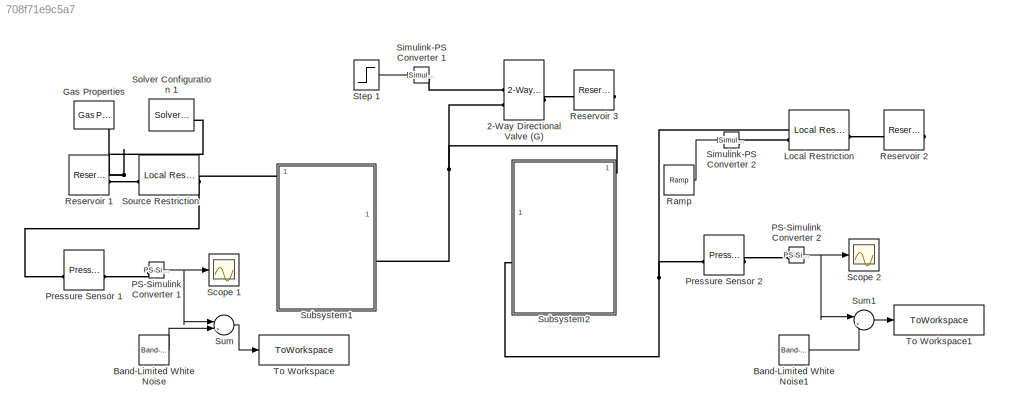
MODEL slx_708f71e9c5a7
KIND model
CONFIG AbsTol = auto
CONFIG EnableMultiTasking = off
CONFIG FixedStep = auto
CONFIG MaxStep = auto
CONFIG MinStep = auto
CONFIG RelTol = 1e-3
CONFIG SampleTimeConstraint = Unconstrained
CONFIG SolverName = VariableStepAuto
CONFIG StartTime = 0.0
CONFIG StopTime = 150.0
BLOCK [Reference] 2-Way Directional Valve (G)  REF=SimscapeFluids_lib/Gas/Valves & Orifices/Directional Control
Valves/2-Way Directional
Valve (G)
  SourceBlock = SimscapeFluids_lib/Gas/Valves & Orifices/Directional Control\nValves/2-Way Directional\nValve (G)
  SourceType = 2-Way Directional\nValve (G)
BLOCK [Reference] Band-Limited White Noise  REF=simulink/Sources/Band-Limited
White Noise
  SourceBlock = simulink/Sources/Band-Limited\nWhite Noise
  SourceType = Band-Limited White Noise.
BLOCK [Reference] Band-Limited White Noise1  REF=simulink/Sources/Band-Limited
White Noise
  SourceBlock = simulink/Sources/Band-Limited\nWhite Noise
  SourceType = Band-Limited White Noise.
BLOCK [Reference] Gas Properties  REF=fl_lib/Gas/Utilities/Gas Properties (G)
  NameLocation = top
  SourceBlock = fl_lib/Gas/Utilities/Gas Properties (G)
  SourceType = Gas Properties (G)
BLOCK [Reference] Local Restriction  REF=fl_lib/Gas/Elements/Local Restriction
(G)
  SourceBlock = fl_lib/Gas/Elements/Local Restriction\n(G)
  SourceType = Local Restriction\n(G)
BLOCK [Reference] PS-Simulink Converter 1  REF=nesl_utility/PS-Simulink
Converter
  SourceBlock = nesl_utility/PS-Simulink\nConverter
  SourceType = PS-Simulink\nConverter
BLOCK [Reference] PS-Simulink Converter 2  REF=nesl_utility/PS-Simulink
Converter
  SourceBlock = nesl_utility/PS-Simulink\nConverter
  SourceType = PS-Simulink\nConverter
BLOCK [Reference] Pressure Sensor 1  REF=fl_lib/Gas/Sensors/Pressure &
Temperature Sensor
(G)
  SourceBlock = fl_lib/Gas/Sensors/Pressure &\nTemperature Sensor\n(G)
  SourceType = Pressure &\nTemperature Sensor\n(G)
BLOCK [Reference] Pressure Sensor 2  REF=fl_lib/Gas/Sensors/Pressure &
Temperature Sensor
(G)
  SourceBlock = fl_lib/Gas/Sensors/Pressure &\nTemperature Sensor\n(G)
  SourceType = Pressure &\nTemperature Sensor\n(G)
BLOCK [Reference] Ramp  REF=simulink/Sources/Ramp
  SourceBlock = simulink/Sources/Ramp
  SourceType = Ramp
BLOCK [Reference] Reservoir 1  REF=fl_lib/Gas/Elements/Reservoir (G)
  SourceBlock = fl_lib/Gas/Elements/Reservoir (G)
  SourceType = Reservoir (G)
BLOCK [Reference] Reservoir 2  REF=fl_lib/Gas/Elements/Reservoir (G)
  SourceBlock = fl_lib/Gas/Elements/Reservoir (G)
  SourceType = Reservoir (G)
BLOCK [Reference] Reservoir 3  REF=fl_lib/Gas/Elements/Reservoir (G)
  SourceBlock = fl_lib/Gas/Elements/Reservoir (G)
  SourceType = Reservoir (G)
BLOCK [Scope] Scope 1
  ActiveDisplayYMaximum = 4.9977114655303492
  ActiveDisplayYMinimum = 4.9977114305855181
  DisplayFullPath = on
  Floating = off
  GraphicalSettings = {"AxesScalingProperties":{"AlignXAxis":"Center","AlignYAxis":"Center","AutoScaleXAxisLimits":false,"AxesScaling":"Manual","AxesScalingNumUpdates":10,"ExpandOnly":true,"ScaleAxesLimitsAtStop":false,"XAxisDataRange":100,"YAxisDataRange":80},"DisplayProperties":{"ColorOrder":["auto","auto","auto","auto","auto","auto","auto","auto","auto","auto","auto","auto","auto","auto","auto","auto","auto","auto",...<+1872ch>
  MultipleDisplayCache = [{"MaxYLimMag":4.9977114956263282,"MaxYLimReal":4.9977114655303492,"MinYLimMag":4.9977110918172514,"MinYLimReal":4.9977114305855181,"PlotAsMagnitudePhase":false,"ShowGrid":true,"ShowLegend":true,"Title":"Upstream Pressure","YLabel":""}]
  NumInputPorts = 1
  OpenAtSimulationStart = on
  ScopeFrameLocation = window
  ShowLegend = on
  ShowTimeAxisLabel = on
  Title = Upstream Pressure
  WasSavedAsWebScope = on
  WindowPosition = [1360.000000,576.000000,560.000000,420.000000,]
BLOCK [Scope] Scope 2
  ActiveDisplayYMaximum = 4.5020973094450438
  ActiveDisplayYMinimum = 4.5020972994524531
  DataLoggingVariableName = ScopeData1
  DisplayFullPath = on
  Floating = off
  GraphicalSettings = {"AxesScalingProperties":{"AlignXAxis":"Center","AlignYAxis":"Center","AutoScaleXAxisLimits":false,"AxesScaling":"Manual","AxesScalingNumUpdates":10,"ExpandOnly":true,"ScaleAxesLimitsAtStop":false,"XAxisDataRange":100,"YAxisDataRange":80},"DisplayProperties":{"ColorOrder":["auto","auto","auto","auto","auto","auto","auto","auto","auto","auto","auto","auto","auto","auto","auto","auto","auto","auto",...<+1987ch>
  MultipleDisplayCache = [{"MaxYLimMag":4.5020973216766755,"MaxYLimReal":4.5020973094450438,"MinYLimMag":4.5020971612976837,"MinYLimReal":4.5020972994524531,"PlotAsMagnitudePhase":false,"ShowGrid":true,"ShowLegend":true,"Title":"Downstream Pressure","YLabel":""}]
  NumInputPorts = 1
  OpenAtSimulationStart = on
  ScopeFrameLocation = window
  ShowLegend = on
  ShowTimeAxisLabel = on
  Title = Downstream Pressure
  WasSavedAsWebScope = on
  WindowPosition = [1360.000000,123.000000,560.000000,420.000000,]
BLOCK [Reference] Simulink-PS Converter 1  REF=nesl_utility/Simulink-PS
Converter
  NameLocation = top
  SourceBlock = nesl_utility/Simulink-PS\nConverter
  SourceType = Simulink-PS\nConverter
BLOCK [Reference] Simulink-PS Converter 2  REF=nesl_utility/Simulink-PS
Converter
  SourceBlock = nesl_utility/Simulink-PS\nConverter
  SourceType = Simulink-PS\nConverter
BLOCK [Reference] Solver Configuration 1  REF=nesl_utility/Solver
Configuration
  NameLocation = top
  SourceBlock = nesl_utility/Solver\nConfiguration
  SourceType = Solver\nConfiguration
BLOCK [Reference] Source Restriction  REF=fl_lib/Gas/Elements/Local Restriction
(G)
  SourceBlock = fl_lib/Gas/Elements/Local Restriction\n(G)
  SourceType = Local Restriction\n(G)
BLOCK [Step] Step 1
  After = sim_leak_area
  SampleTime = 0
  Time = 10
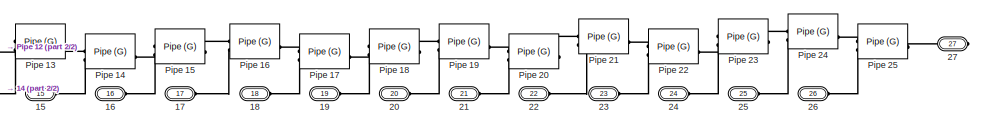
[diagram: Subsystem1 - part 1/2, right side, full height]
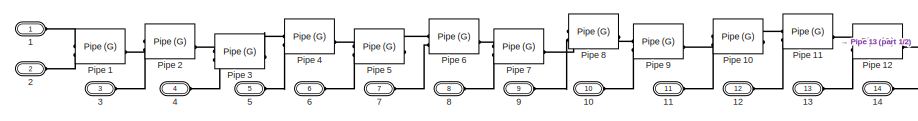
[diagram: Subsystem1 - part 2/2, middle left region]
BLOCK [SubSystem] Subsystem1
BLOCK [PMIOPort] Subsystem1/1
  Side = Left
BLOCK [PMIOPort] Subsystem1/10
  Port = 10
  Side = Left
BLOCK [PMIOPort] Subsystem1/11
  Port = 11
  Side = Left
BLOCK [PMIOPort] Subsystem1/12
  Port = 12
  Side = Left
BLOCK [PMIOPort] Subsystem1/13
  Port = 13
  Side = Left
BLOCK [PMIOPort] Subsystem1/14
  Port = 14
  Side = Left
BLOCK [PMIOPort] Subsystem1/15
  Port = 15
  Side = Left
BLOCK [PMIOPort] Subsystem1/16
  Port = 16
  Side = Left
BLOCK [PMIOPort] Subsystem1/17
  Port = 17
  Side = Left
BLOCK [PMIOPort] Subsystem1/18
  Port = 18
  Side = Left
BLOCK [PMIOPort] Subsystem1/19
  Port = 19
  Side = Left
BLOCK [PMIOPort] Subsystem1/2
  Port = 2
  Side = Left
BLOCK [PMIOPort] Subsystem1/20
  Port = 20
  Side = Left
BLOCK [PMIOPort] Subsystem1/21
  Port = 21
  Side = Left
BLOCK [PMIOPort] Subsystem1/22
  Port = 22
  Side = Left
BLOCK [PMIOPort] Subsystem1/23
  Port = 23
  Side = Left
BLOCK [PMIOPort] Subsystem1/24
  Port = 24
  Side = Left
BLOCK [PMIOPort] Subsystem1/25
  Port = 25
  Side = Left
BLOCK [PMIOPort] Subsystem1/26
  Port = 26
  Side = Left
BLOCK [PMIOPort] Subsystem1/27
  Port = 27
  Side = Right
BLOCK [PMIOPort] Subsystem1/3
  Port = 3
  Side = Left
BLOCK [PMIOPort] Subsystem1/4
  Port = 4
  Side = Left
BLOCK [PMIOPort] Subsystem1/5
  Port = 5
  Side = Left
BLOCK [PMIOPort] Subsystem1/6
  Port = 6
  Side = Left
BLOCK [PMIOPort] Subsystem1/7
  Port = 7
  Side = Left
BLOCK [PMIOPort] Subsystem1/8
  Port = 8
  Side = Left
BLOCK [PMIOPort] Subsystem1/9
  Port = 9
  Side = Left
BLOCK [Reference] Subsystem1/Pipe 1  REF=fl_lib/Gas/Elements/Pipe (G)
  SourceBlock = fl_lib/Gas/Elements/Pipe (G)
  SourceType = Pipe (G)
BLOCK [Reference] Subsystem1/Pipe 10  REF=fl_lib/Gas/Elements/Pipe (G)
  SourceBlock = fl_lib/Gas/Elements/Pipe (G)
  SourceType = Pipe (G)
BLOCK [Reference] Subsystem1/Pipe 11  REF=fl_lib/Gas/Elements/Pipe (G)
  SourceBlock = fl_lib/Gas/Elements/Pipe (G)
  SourceType = Pipe (G)
BLOCK [Reference] Subsystem1/Pipe 12  REF=fl_lib/Gas/Elements/Pipe (G)
  SourceBlock = fl_lib/Gas/Elements/Pipe (G)
  SourceType = Pipe (G)
BLOCK [Reference] Subsystem1/Pipe 13  REF=fl_lib/Gas/Elements/Pipe (G)
  SourceBlock = fl_lib/Gas/Elements/Pipe (G)
  SourceType = Pipe (G)
BLOCK [Reference] Subsystem1/Pipe 14  REF=fl_lib/Gas/Elements/Pipe (G)
  SourceBlock = fl_lib/Gas/Elements/Pipe (G)
  SourceType = Pipe (G)
BLOCK [Reference] Subsystem1/Pipe 15  REF=fl_lib/Gas/Elements/Pipe (G)
  SourceBlock = fl_lib/Gas/Elements/Pipe (G)
  SourceType = Pipe (G)
BLOCK [Reference] Subsystem1/Pipe 16  REF=fl_lib/Gas/Elements/Pipe (G)
  SourceBlock = fl_lib/Gas/Elements/Pipe (G)
  SourceType = Pipe (G)
BLOCK [Reference] Subsystem1/Pipe 17  REF=fl_lib/Gas/Elements/Pipe (G)
  SourceBlock = fl_lib/Gas/Elements/Pipe (G)
  SourceType = Pipe (G)
BLOCK [Reference] Subsystem1/Pipe 18  REF=fl_lib/Gas/Elements/Pipe (G)
  SourceBlock = fl_lib/Gas/Elements/Pipe (G)
  SourceType = Pipe (G)
BLOCK [Reference] Subsystem1/Pipe 19  REF=fl_lib/Gas/Elements/Pipe (G)
  SourceBlock = fl_lib/Gas/Elements/Pipe (G)
  SourceType = Pipe (G)
BLOCK [Reference] Subsystem1/Pipe 2  REF=fl_lib/Gas/Elements/Pipe (G)
  SourceBlock = fl_lib/Gas/Elements/Pipe (G)
  SourceType = Pipe (G)
BLOCK [Reference] Subsystem1/Pipe 20  REF=fl_lib/Gas/Elements/Pipe (G)
  SourceBlock = fl_lib/Gas/Elements/Pipe (G)
  SourceType = Pipe (G)
BLOCK [Reference] Subsystem1/Pipe 21  REF=fl_lib/Gas/Elements/Pipe (G)
  SourceBlock = fl_lib/Gas/Elements/Pipe (G)
  SourceType = Pipe (G)
BLOCK [Reference] Subsystem1/Pipe 22  REF=fl_lib/Gas/Elements/Pipe (G)
  SourceBlock = fl_lib/Gas/Elements/Pipe (G)
  SourceType = Pipe (G)
BLOCK [Reference] Subsystem1/Pipe 23  REF=fl_lib/Gas/Elements/Pipe (G)
  SourceBlock = fl_lib/Gas/Elements/Pipe (G)
  SourceType = Pipe (G)
BLOCK [Reference] Subsystem1/Pipe 24  REF=fl_lib/Gas/Elements/Pipe (G)
  SourceBlock = fl_lib/Gas/Elements/Pipe (G)
  SourceType = Pipe (G)
BLOCK [Reference] Subsystem1/Pipe 25  REF=fl_lib/Gas/Elements/Pipe (G)
  SourceBlock = fl_lib/Gas/Elements/Pipe (G)
  SourceType = Pipe (G)
BLOCK [Reference] Subsystem1/Pipe 3  REF=fl_lib/Gas/Elements/Pipe (G)
  SourceBlock = fl_lib/Gas/Elements/Pipe (G)
  SourceType = Pipe (G)
BLOCK [Reference] Subsystem1/Pipe 4  REF=fl_lib/Gas/Elements/Pipe (G)
  SourceBlock = fl_lib/Gas/Elements/Pipe (G)
  SourceType = Pipe (G)
BLOCK [Reference] Subsystem1/Pipe 5  REF=fl_lib/Gas/Elements/Pipe (G)
  SourceBlock = fl_lib/Gas/Elements/Pipe (G)
  SourceType = Pipe (G)
BLOCK [Reference] Subsystem1/Pipe 6  REF=fl_lib/Gas/Elements/Pipe (G)
  SourceBlock = fl_lib/Gas/Elements/Pipe (G)
  SourceType = Pipe (G)
BLOCK [Reference] Subsystem1/Pipe 7  REF=fl_lib/Gas/Elements/Pipe (G)
  SourceBlock = fl_lib/Gas/Elements/Pipe (G)
  SourceType = Pipe (G)
BLOCK [Reference] Subsystem1/Pipe 8  REF=fl_lib/Gas/Elements/Pipe (G)
  SourceBlock = fl_lib/Gas/Elements/Pipe (G)
  SourceType = Pipe (G)
BLOCK [Reference] Subsystem1/Pipe 9  REF=fl_lib/Gas/Elements/Pipe (G)
  SourceBlock = fl_lib/Gas/Elements/Pipe (G)
  SourceType = Pipe (G)
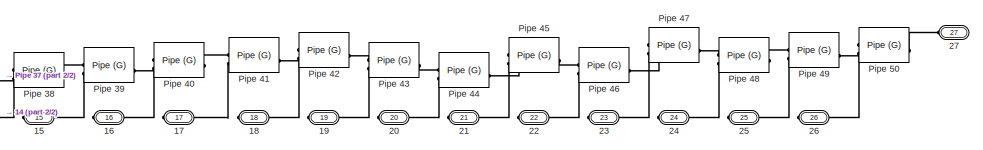
[diagram: Subsystem2 - part 1/2, right side, full height]
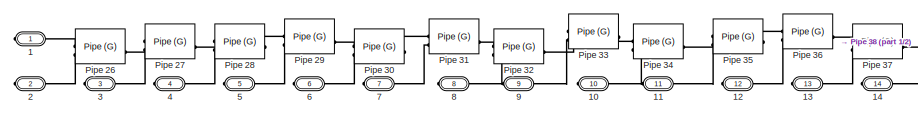
[diagram: Subsystem2 - part 2/2, middle left region]
BLOCK [SubSystem] Subsystem2
BLOCK [PMIOPort] Subsystem2/1
  Side = Right
BLOCK [PMIOPort] Subsystem2/10
  Port = 10
  Side = Right
BLOCK [PMIOPort] Subsystem2/11
  Port = 11
  Side = Right
BLOCK [PMIOPort] Subsystem2/12
  Port = 12
  Side = Right
BLOCK [PMIOPort] Subsystem2/13
  Port = 13
  Side = Right
BLOCK [PMIOPort] Subsystem2/14
  Port = 14
  Side = Right
BLOCK [PMIOPort] Subsystem2/15
  Port = 15
  Side = Right
BLOCK [PMIOPort] Subsystem2/16
  Port = 16
  Side = Right
BLOCK [PMIOPort] Subsystem2/17
  Port = 17
  Side = Right
BLOCK [PMIOPort] Subsystem2/18
  Port = 18
  Side = Right
BLOCK [PMIOPort] Subsystem2/19
  Port = 19
  Side = Right
BLOCK [PMIOPort] Subsystem2/2
  Port = 2
  Side = Right
BLOCK [PMIOPort] Subsystem2/20
  Port = 20
  Side = Right
BLOCK [PMIOPort] Subsystem2/21
  Port = 21
  Side = Right
BLOCK [PMIOPort] Subsystem2/22
  Port = 22
  Side = Right
BLOCK [PMIOPort] Subsystem2/23
  Port = 23
  Side = Right
BLOCK [PMIOPort] Subsystem2/24
  Port = 24
  Side = Right
BLOCK [PMIOPort] Subsystem2/25
  Port = 25
  Side = Right
BLOCK [PMIOPort] Subsystem2/26
  Port = 26
  Side = Right
BLOCK [PMIOPort] Subsystem2/27
  Port = 27
  Side = Left
BLOCK [PMIOPort] Subsystem2/3
  Port = 3
  Side = Right
BLOCK [PMIOPort] Subsystem2/4
  Port = 4
  Side = Right
BLOCK [PMIOPort] Subsystem2/5
  Port = 5
  Side = Right
BLOCK [PMIOPort] Subsystem2/6
  Port = 6
  Side = Right
BLOCK [PMIOPort] Subsystem2/7
  Port = 7
  Side = Right
BLOCK [PMIOPort] Subsystem2/8
  Port = 8
  Side = Right
BLOCK [PMIOPort] Subsystem2/9
  Port = 9
  Side = Right
BLOCK [Reference] Subsystem2/Pipe 26  REF=fl_lib/Gas/Elements/Pipe (G)
  SourceBlock = fl_lib/Gas/Elements/Pipe (G)
  SourceType = Pipe (G)
BLOCK [Reference] Subsystem2/Pipe 27  REF=fl_lib/Gas/Elements/Pipe (G)
  SourceBlock = fl_lib/Gas/Elements/Pipe (G)
  SourceType = Pipe (G)
BLOCK [Reference] Subsystem2/Pipe 28  REF=fl_lib/Gas/Elements/Pipe (G)
  SourceBlock = fl_lib/Gas/Elements/Pipe (G)
  SourceType = Pipe (G)
BLOCK [Reference] Subsystem2/Pipe 29  REF=fl_lib/Gas/Elements/Pipe (G)
  SourceBlock = fl_lib/Gas/Elements/Pipe (G)
  SourceType = Pipe (G)
BLOCK [Reference] Subsystem2/Pipe 30  REF=fl_lib/Gas/Elements/Pipe (G)
  SourceBlock = fl_lib/Gas/Elements/Pipe (G)
  SourceType = Pipe (G)
BLOCK [Reference] Subsystem2/Pipe 31  REF=fl_lib/Gas/Elements/Pipe (G)
  SourceBlock = fl_lib/Gas/Elements/Pipe (G)
  SourceType = Pipe (G)
BLOCK [Reference] Subsystem2/Pipe 32  REF=fl_lib/Gas/Elements/Pipe (G)
  SourceBlock = fl_lib/Gas/Elements/Pipe (G)
  SourceType = Pipe (G)
BLOCK [Reference] Subsystem2/Pipe 33  REF=fl_lib/Gas/Elements/Pipe (G)
  SourceBlock = fl_lib/Gas/Elements/Pipe (G)
  SourceType = Pipe (G)
BLOCK [Reference] Subsystem2/Pipe 34  REF=fl_lib/Gas/Elements/Pipe (G)
  SourceBlock = fl_lib/Gas/Elements/Pipe (G)
  SourceType = Pipe (G)
BLOCK [Reference] Subsystem2/Pipe 35  REF=fl_lib/Gas/Elements/Pipe (G)
  SourceBlock = fl_lib/Gas/Elements/Pipe (G)
  SourceType = Pipe (G)
BLOCK [Reference] Subsystem2/Pipe 36  REF=fl_lib/Gas/Elements/Pipe (G)
  SourceBlock = fl_lib/Gas/Elements/Pipe (G)
  SourceType = Pipe (G)
BLOCK [Reference] Subsystem2/Pipe 37  REF=fl_lib/Gas/Elements/Pipe (G)
  SourceBlock = fl_lib/Gas/Elements/Pipe (G)
  SourceType = Pipe (G)
BLOCK [Reference] Subsystem2/Pipe 38  REF=fl_lib/Gas/Elements/Pipe (G)
  SourceBlock = fl_lib/Gas/Elements/Pipe (G)
  SourceType = Pipe (G)
BLOCK [Reference] Subsystem2/Pipe 39  REF=fl_lib/Gas/Elements/Pipe (G)
  SourceBlock = fl_lib/Gas/Elements/Pipe (G)
  SourceType = Pipe (G)
BLOCK [Reference] Subsystem2/Pipe 40  REF=fl_lib/Gas/Elements/Pipe (G)
  SourceBlock = fl_lib/Gas/Elements/Pipe (G)
  SourceType = Pipe (G)
BLOCK [Reference] Subsystem2/Pipe 41  REF=fl_lib/Gas/Elements/Pipe (G)
  SourceBlock = fl_lib/Gas/Elements/Pipe (G)
  SourceType = Pipe (G)
BLOCK [Reference] Subsystem2/Pipe 42  REF=fl_lib/Gas/Elements/Pipe (G)
  SourceBlock = fl_lib/Gas/Elements/Pipe (G)
  SourceType = Pipe (G)
BLOCK [Reference] Subsystem2/Pipe 43  REF=fl_lib/Gas/Elements/Pipe (G)
  SourceBlock = fl_lib/Gas/Elements/Pipe (G)
  SourceType = Pipe (G)
BLOCK [Reference] Subsystem2/Pipe 44  REF=fl_lib/Gas/Elements/Pipe (G)
  SourceBlock = fl_lib/Gas/Elements/Pipe (G)
  SourceType = Pipe (G)
BLOCK [Reference] Subsystem2/Pipe 45  REF=fl_lib/Gas/Elements/Pipe (G)
  SourceBlock = fl_lib/Gas/Elements/Pipe (G)
  SourceType = Pipe (G)
BLOCK [Reference] Subsystem2/Pipe 46  REF=fl_lib/Gas/Elements/Pipe (G)
  SourceBlock = fl_lib/Gas/Elements/Pipe (G)
  SourceType = Pipe (G)
BLOCK [Reference] Subsystem2/Pipe 47  REF=fl_lib/Gas/Elements/Pipe (G)
  SourceBlock = fl_lib/Gas/Elements/Pipe (G)
  SourceType = Pipe (G)
BLOCK [Reference] Subsystem2/Pipe 48  REF=fl_lib/Gas/Elements/Pipe (G)
  SourceBlock = fl_lib/Gas/Elements/Pipe (G)
  SourceType = Pipe (G)
BLOCK [Reference] Subsystem2/Pipe 49  REF=fl_lib/Gas/Elements/Pipe (G)
  SourceBlock = fl_lib/Gas/Elements/Pipe (G)
  SourceType = Pipe (G)
BLOCK [Reference] Subsystem2/Pipe 50  REF=fl_lib/Gas/Elements/Pipe (G)
  SourceBlock = fl_lib/Gas/Elements/Pipe (G)
  SourceType = Pipe (G)
BLOCK [Sum] Sum
  Inputs = |++
BLOCK [Sum] Sum1
  Inputs = |++
BLOCK [ToWorkspace] To Workspace
  FixptAsFi = on
  MaxDataPoints = inf
  SampleTime = 0.1
  SaveFormat = Timeseries
  VariableName = P_inlet
BLOCK [ToWorkspace] To Workspace1
  FixptAsFi = on
  MaxDataPoints = inf
  SampleTime = 0.1
  SaveFormat = Timeseries
  VariableName = P_outlet
LINE Band-Limited White Noise1:1 -> Sum1:2
LINE Band-Limited White Noise:1 -> Sum:2
NET PS-Simulink Converter 1:1 -> Scope 1:1, Sum:1
NET PS-Simulink Converter 2:1 -> Scope 2:1, Sum1:1
LINE Ramp:1 -> Simulink-PS Converter 2:1
LINE Step 1:1 -> Simulink-PS Converter 1:1
LINE Sum1:1 -> To Workspace1:1
LINE Sum:1 -> To Workspace:1
PLINE 2-Way Directional Valve (G):LConn1 -- Reservoir 3:LConn1
PLINE 2-Way Directional Valve (G):RConn1 -- Simulink-PS Converter 1:RConn1
PNET net1: 2-Way Directional Valve (G):RConn2 -- Subsystem1:RConn1 -- Subsystem2:RConn1
PNET net2: Gas Properties:RConn1 -- Reservoir 1:LConn1 -- Solver Configuration 1:RConn1 -- Source Restriction:LConn1
PNET net3: Local Restriction:LConn1 -- Pressure Sensor 2:LConn1 -- Subsystem2:LConn1
PLINE Local Restriction:LConn2 -- Simulink-PS Converter 2:RConn1
PLINE Local Restriction:RConn1 -- Reservoir 2:LConn1
PLINE PS-Simulink Converter 1:LConn1 -- Pressure Sensor 1:RConn1
PLINE PS-Simulink Converter 2:LConn1 -- Pressure Sensor 2:RConn1
PNET net4: Pressure Sensor 1:LConn1 -- Source Restriction:RConn1 -- Subsystem1:LConn1
PLINE Subsystem1/10:RConn1 -- Subsystem1/Pipe 9:LConn2
PLINE Subsystem1/11:RConn1 -- Subsystem1/Pipe 10:LConn2
PLINE Subsystem1/12:RConn1 -- Subsystem1/Pipe 11:LConn2
PLINE Subsystem1/13:RConn1 -- Subsystem1/Pipe 12:LConn2
PLINE Subsystem1/14:RConn1 -- Subsystem1/Pipe 13:LConn2
PLINE Subsystem1/15:RConn1 -- Subsystem1/Pipe 14:LConn2
PLINE Subsystem1/16:RConn1 -- Subsystem1/Pipe 15:LConn2
PLINE Subsystem1/17:RConn1 -- Subsystem1/Pipe 16:LConn2
PLINE Subsystem1/18:RConn1 -- Subsystem1/Pipe 17:LConn2
PLINE Subsystem1/19:RConn1 -- Subsystem1/Pipe 18:LConn2
PLINE Subsystem1/1:RConn1 -- Subsystem1/Pipe 1:LConn1
PLINE Subsystem1/20:RConn1 -- Subsystem1/Pipe 19:LConn2
PLINE Subsystem1/21:RConn1 -- Subsystem1/Pipe 20:LConn2
PLINE Subsystem1/22:RConn1 -- Subsystem1/Pipe 21:LConn2
PLINE Subsystem1/23:RConn1 -- Subsystem1/Pipe 22:LConn2
PLINE Subsystem1/24:RConn1 -- Subsystem1/Pipe 23:LConn2
PLINE Subsystem1/25:RConn1 -- Subsystem1/Pipe 24:LConn2
PLINE Subsystem1/26:RConn1 -- Subsystem1/Pipe 25:LConn2
PLINE Subsystem1/27:RConn1 -- Subsystem1/Pipe 25:RConn1
PLINE Subsystem1/2:RConn1 -- Subsystem1/Pipe 1:LConn2
PLINE Subsystem1/3:RConn1 -- Subsystem1/Pipe 2:LConn2
PLINE Subsystem1/4:RConn1 -- Subsystem1/Pipe 3:LConn2
PLINE Subsystem1/5:RConn1 -- Subsystem1/Pipe 4:LConn2
PLINE Subsystem1/6:RConn1 -- Subsystem1/Pipe 5:LConn2
PLINE Subsystem1/7:RConn1 -- Subsystem1/Pipe 6:LConn2
PLINE Subsystem1/8:RConn1 -- Subsystem1/Pipe 7:LConn2
PLINE Subsystem1/9:RConn1 -- Subsystem1/Pipe 8:LConn2
PLINE Subsystem1/Pipe 10:LConn1 -- Subsystem1/Pipe 9:RConn1
PLINE Subsystem1/Pipe 10:RConn1 -- Subsystem1/Pipe 11:LConn1
PLINE Subsystem1/Pipe 11:RConn1 -- Subsystem1/Pipe 12:LConn1
PLINE Subsystem1/Pipe 12:RConn1 -- Subsystem1/Pipe 13:LConn1
PLINE Subsystem1/Pipe 13:RConn1 -- Subsystem1/Pipe 14:LConn1
PLINE Subsystem1/Pipe 14:RConn1 -- Subsystem1/Pipe 15:LConn1
PLINE Subsystem1/Pipe 15:RConn1 -- Subsystem1/Pipe 16:LConn1
PLINE Subsystem1/Pipe 16:RConn1 -- Subsystem1/Pipe 17:LConn1
PLINE Subsystem1/Pipe 17:RConn1 -- Subsystem1/Pipe 18:LConn1
PLINE Subsystem1/Pipe 18:RConn1 -- Subsystem1/Pipe 19:LConn1
PLINE Subsystem1/Pipe 19:RConn1 -- Subsystem1/Pipe 20:LConn1
PLINE Subsystem1/Pipe 1:RConn1 -- Subsystem1/Pipe 2:LConn1
PLINE Subsystem1/Pipe 20:RConn1 -- Subsystem1/Pipe 21:LConn1
PLINE Subsystem1/Pipe 21:RConn1 -- Subsystem1/Pipe 22:LConn1
PLINE Subsystem1/Pipe 22:RConn1 -- Subsystem1/Pipe 23:LConn1
PLINE Subsystem1/Pipe 23:RConn1 -- Subsystem1/Pipe 24:LConn1
PLINE Subsystem1/Pipe 24:RConn1 -- Subsystem1/Pipe 25:LConn1
PLINE Subsystem1/Pipe 2:RConn1 -- Subsystem1/Pipe 3:LConn1
PLINE Subsystem1/Pipe 3:RConn1 -- Subsystem1/Pipe 4:LConn1
PLINE Subsystem1/Pipe 4:RConn1 -- Subsystem1/Pipe 5:LConn1
PLINE Subsystem1/Pipe 5:RConn1 -- Subsystem1/Pipe 6:LConn1
PLINE Subsystem1/Pipe 6:RConn1 -- Subsystem1/Pipe 7:LConn1
PLINE Subsystem1/Pipe 7:RConn1 -- Subsystem1/Pipe 8:LConn1
PLINE Subsystem1/Pipe 8:RConn1 -- Subsystem1/Pipe 9:LConn1
PLINE Subsystem2/10:RConn1 -- Subsystem2/Pipe 34:LConn2
PLINE Subsystem2/11:RConn1 -- Subsystem2/Pipe 35:LConn2
PLINE Subsystem2/12:RConn1 -- Subsystem2/Pipe 36:LConn2
PLINE Subsystem2/13:RConn1 -- Subsystem2/Pipe 37:LConn2
PLINE Subsystem2/14:RConn1 -- Subsystem2/Pipe 38:LConn2
PLINE Subsystem2/15:RConn1 -- Subsystem2/Pipe 39:LConn2
PLINE Subsystem2/16:RConn1 -- Subsystem2/Pipe 40:LConn2
PLINE Subsystem2/17:RConn1 -- Subsystem2/Pipe 41:LConn2
PLINE Subsystem2/18:RConn1 -- Subsystem2/Pipe 42:LConn2
PLINE Subsystem2/19:RConn1 -- Subsystem2/Pipe 43:LConn2
PLINE Subsystem2/1:RConn1 -- Subsystem2/Pipe 26:LConn1
PLINE Subsystem2/20:RConn1 -- Subsystem2/Pipe 44:LConn2
PLINE Subsystem2/21:RConn1 -- Subsystem2/Pipe 45:LConn2
PLINE Subsystem2/22:RConn1 -- Subsystem2/Pipe 46:LConn2
PLINE Subsystem2/23:RConn1 -- Subsystem2/Pipe 47:LConn2
PLINE Subsystem2/24:RConn1 -- Subsystem2/Pipe 48:LConn2
PLINE Subsystem2/25:RConn1 -- Subsystem2/Pipe 49:LConn2
PLINE Subsystem2/26:RConn1 -- Subsystem2/Pipe 50:LConn2
PLINE Subsystem2/27:RConn1 -- Subsystem2/Pipe 50:RConn1
PLINE Subsystem2/2:RConn1 -- Subsystem2/Pipe 26:LConn2
PLINE Subsystem2/3:RConn1 -- Subsystem2/Pipe 27:LConn2
PLINE Subsystem2/4:RConn1 -- Subsystem2/Pipe 28:LConn2
PLINE Subsystem2/5:RConn1 -- Subsystem2/Pipe 29:LConn2
PLINE Subsystem2/6:RConn1 -- Subsystem2/Pipe 30:LConn2
PLINE Subsystem2/7:RConn1 -- Subsystem2/Pipe 31:LConn2
PLINE Subsystem2/8:RConn1 -- Subsystem2/Pipe 32:LConn2
PLINE Subsystem2/9:RConn1 -- Subsystem2/Pipe 33:LConn2
PLINE Subsystem2/Pipe 26:RConn1 -- Subsystem2/Pipe 27:LConn1
PLINE Subsystem2/Pipe 27:RConn1 -- Subsystem2/Pipe 28:LConn1
PLINE Subsystem2/Pipe 28:RConn1 -- Subsystem2/Pipe 29:LConn1
PLINE Subsystem2/Pipe 29:RConn1 -- Subsystem2/Pipe 30:LConn1
PLINE Subsystem2/Pipe 30:RConn1 -- Subsystem2/Pipe 31:LConn1
PLINE Subsystem2/Pipe 31:RConn1 -- Subsystem2/Pipe 32:LConn1
PLINE Subsystem2/Pipe 32:RConn1 -- Subsystem2/Pipe 33:LConn1
PLINE Subsystem2/Pipe 33:RConn1 -- Subsystem2/Pipe 34:LConn1
PLINE Subsystem2/Pipe 34:RConn1 -- Subsystem2/Pipe 35:LConn1
PLINE Subsystem2/Pipe 35:RConn1 -- Subsystem2/Pipe 36:LConn1
PLINE Subsystem2/Pipe 36:RConn1 -- Subsystem2/Pipe 37:LConn1
PLINE Subsystem2/Pipe 37:RConn1 -- Subsystem2/Pipe 38:LConn1
PLINE Subsystem2/Pipe 38:RConn1 -- Subsystem2/Pipe 39:LConn1
PLINE Subsystem2/Pipe 39:RConn1 -- Subsystem2/Pipe 40:LConn1
PLINE Subsystem2/Pipe 40:RConn1 -- Subsystem2/Pipe 41:LConn1
PLINE Subsystem2/Pipe 41:RConn1 -- Subsystem2/Pipe 42:LConn1
PLINE Subsystem2/Pipe 42:RConn1 -- Subsystem2/Pipe 43:LConn1
PLINE Subsystem2/Pipe 43:RConn1 -- Subsystem2/Pipe 44:LConn1
PLINE Subsystem2/Pipe 44:RConn1 -- Subsystem2/Pipe 45:LConn1
PLINE Subsystem2/Pipe 45:RConn1 -- Subsystem2/Pipe 46:LConn1
PLINE Subsystem2/Pipe 46:RConn1 -- Subsystem2/Pipe 47:LConn1
PLINE Subsystem2/Pipe 47:RConn1 -- Subsystem2/Pipe 48:LConn1
PLINE Subsystem2/Pipe 48:RConn1 -- Subsystem2/Pipe 49:LConn1
PLINE Subsystem2/Pipe 49:RConn1 -- Subsystem2/Pipe 50:LConn1
note: NET lines group one-source signal fan-out (src -> all destinations, sorted); 1:1 wires keep LINE; PNET lines group multi-terminal physical nets as a canonical sorted terminal list (undirected conserving connections); 2-terminal nets keep the pairwise PLINE form
